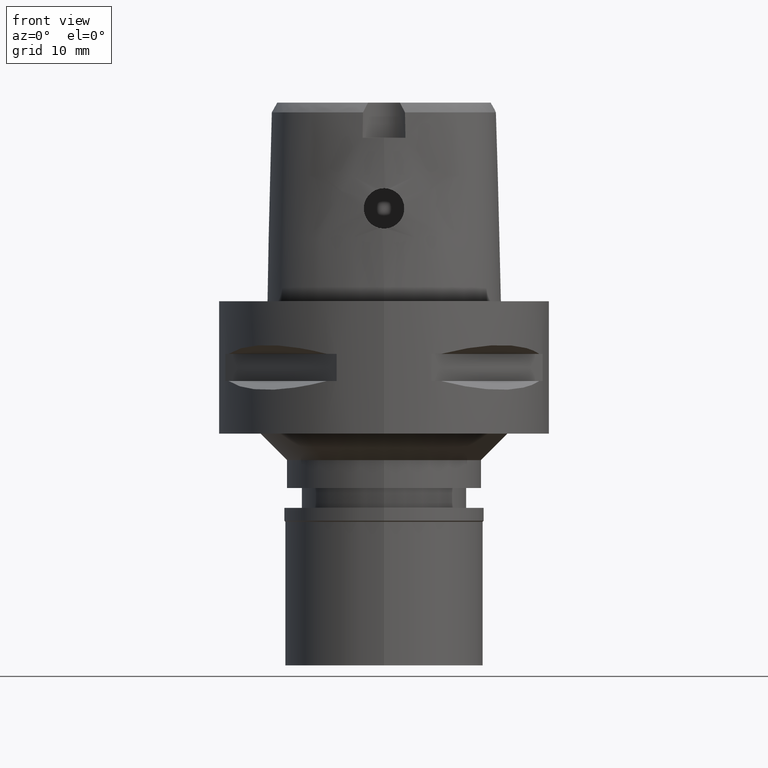
[diagram: clean part render]
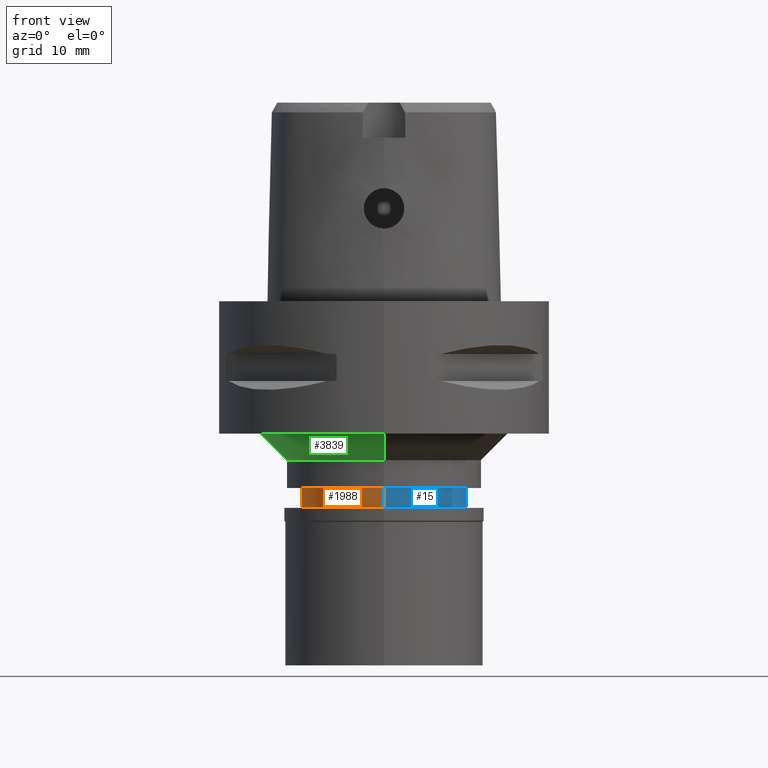
[diagram: same view with three faces highlighted in distinct colors, each labeled with its STEP entity id]
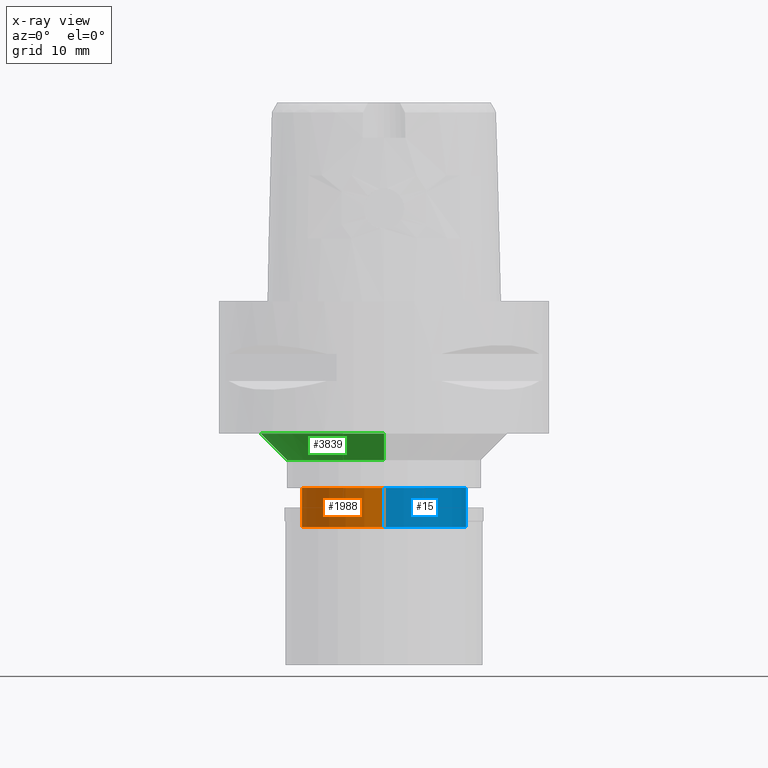
[diagram: x-ray of the same camera — body ghosted, the three highlighted faces saturated]
A machine part, front view with three faces highlighted in distinct colors.
The next image is the same camera in x-ray (body ghosted, the three faces saturated) — at least one of them is partly hidden behind the body in this view.
Their STEP definitions:

[orange] entity #1988 — the highlighted cylindrical surface (partial cylindrical patch) has radius 12.5 mm, axis along (0, 0, -1).
#91 = CARTESIAN_POINT ( 'NONE',  ( 0.0000000000000000000, -12.50000000000000000, -28.19999999999999929 ) ) ;
#128 = CARTESIAN_POINT ( 'NONE',  ( 0.0000000000000000000, 12.50000000000000000, -28.19999999999999929 ) ) ;
#204 = CARTESIAN_POINT ( 'NONE',  ( 0.0000000000000000000, -12.50000000000000000, -34.10000000000000142 ) ) ;
#232 = CARTESIAN_POINT ( 'NONE',  ( 0.0000000000000000000, 1.252201352127999809E-14, 2.250000000000000000 ) ) ;
#284 = CIRCLE ( 'NONE', #3139, 12.50000000000000000 ) ;
#417 = VERTEX_POINT ( 'NONE', #4770 ) ;
#434 = CIRCLE ( 'NONE', #2666, 12.50000000000000000 ) ;
#590 = CYLINDRICAL_SURFACE ( 'NONE', #2211, 12.50000000000000000 ) ;
#675 = CARTESIAN_POINT ( 'NONE',  ( 0.0000000000000000000, 12.50000000000000000, -28.19999999999999929 ) ) ;
#935 = ORIENTED_EDGE ( 'NONE', *, *, #3870, .F. ) ;
#1190 = CARTESIAN_POINT ( 'NONE',  ( 0.0000000000000000000, 1.252201352127999809E-14, -28.19999999999999929 ) ) ;
#1313 = FACE_OUTER_BOUND ( 'NONE', #4338, .T. ) ;
#1724 = EDGE_CURVE ( 'NONE', #417, #3240, #284, .T. ) ;
#1923 = DIRECTION ( 'NONE',  ( 0.0000000000000000000, 1.000000000000000000, 0.0000000000000000000 ) ) ;
#1949 = EDGE_CURVE ( 'NONE', #3318, #2171, #434, .T. ) ;
#1988 = ADVANCED_FACE ( 'NONE', ( #1313 ), #590, .T. ) ;
#2007 = DIRECTION ( 'NONE',  ( 0.0000000000000000000, -1.000000000000000000, 0.0000000000000000000 ) ) ;
#2171 = VERTEX_POINT ( 'NONE', #204 ) ;
#2211 = AXIS2_PLACEMENT_3D ( 'NONE', #232, #3237, #2007 ) ;
#2544 = ORIENTED_EDGE ( 'NONE', *, *, #1724, .T. ) ;
#2572 = ORIENTED_EDGE ( 'NONE', *, *, #3359, .T. ) ;
#2654 = DIRECTION ( 'NONE',  ( 0.0000000000000000000, -1.000000000000000000, 0.0000000000000000000 ) ) ;
#2666 = AXIS2_PLACEMENT_3D ( 'NONE', #3757, #3383, #1923 ) ;
#2714 = DIRECTION ( 'NONE',  ( 0.0000000000000000000, 0.0000000000000000000, -1.000000000000000000 ) ) ;
#3025 = LINE ( 'NONE', #91, #4755 ) ;
#3139 = AXIS2_PLACEMENT_3D ( 'NONE', #1190, #4436, #2654 ) ;
#3237 = DIRECTION ( 'NONE',  ( 0.0000000000000000000, 0.0000000000000000000, -1.000000000000000000 ) ) ;
#3240 = VERTEX_POINT ( 'NONE', #675 ) ;
#3318 = VERTEX_POINT ( 'NONE', #3727 ) ;
#3359 = EDGE_CURVE ( 'NONE', #3240, #3318, #4476, .T. ) ;
#3383 = DIRECTION ( 'NONE',  ( 0.0000000000000000000, 0.0000000000000000000, 1.000000000000000000 ) ) ;
#3727 = CARTESIAN_POINT ( 'NONE',  ( 0.0000000000000000000, 12.50000000000000000, -34.10000000000000142 ) ) ;
#3757 = CARTESIAN_POINT ( 'NONE',  ( 0.0000000000000000000, 1.252201352127999809E-14, -34.10000000000000142 ) ) ;
#3810 = DIRECTION ( 'NONE',  ( 0.0000000000000000000, 0.0000000000000000000, -1.000000000000000000 ) ) ;
#3870 = EDGE_CURVE ( 'NONE', #417, #2171, #3025, .T. ) ;
#4167 = VECTOR ( 'NONE', #3810, 1000.000000000000000 ) ;
#4225 = ORIENTED_EDGE ( 'NONE', *, *, #1949, .T. ) ;
#4338 = EDGE_LOOP ( 'NONE', ( #4225, #935, #2544, #2572 ) ) ;
#4436 = DIRECTION ( 'NONE',  ( 0.0000000000000000000, 0.0000000000000000000, -1.000000000000000000 ) ) ;
#4476 = LINE ( 'NONE', #128, #4167 ) ;
#4755 = VECTOR ( 'NONE', #2714, 1000.000000000000000 ) ;
#4770 = CARTESIAN_POINT ( 'NONE',  ( 0.0000000000000000000, -12.50000000000000000, -28.19999999999999929 ) ) ;

[blue] entity #15 — the highlighted cylindrical surface (partial cylindrical patch) has radius 12.5 mm, axis along (0, 0, -1).
#15 = ADVANCED_FACE ( 'NONE', ( #807 ), #3867, .T. ) ;
#91 = CARTESIAN_POINT ( 'NONE',  ( 0.0000000000000000000, -12.50000000000000000, -28.19999999999999929 ) ) ;
#128 = CARTESIAN_POINT ( 'NONE',  ( 0.0000000000000000000, 12.50000000000000000, -28.19999999999999929 ) ) ;
#204 = CARTESIAN_POINT ( 'NONE',  ( 0.0000000000000000000, -12.50000000000000000, -34.10000000000000142 ) ) ;
#403 = ORIENTED_EDGE ( 'NONE', *, *, #3359, .F. ) ;
#417 = VERTEX_POINT ( 'NONE', #4770 ) ;
#539 = DIRECTION ( 'NONE',  ( 0.0000000000000000000, 0.0000000000000000000, 1.000000000000000000 ) ) ;
#594 = DIRECTION ( 'NONE',  ( 0.0000000000000000000, 1.000000000000000000, 0.0000000000000000000 ) ) ;
#631 = EDGE_LOOP ( 'NONE', ( #1119, #3595, #1598, #403 ) ) ;
#675 = CARTESIAN_POINT ( 'NONE',  ( 0.0000000000000000000, 12.50000000000000000, -28.19999999999999929 ) ) ;
#806 = EDGE_CURVE ( 'NONE', #2171, #3318, #883, .T. ) ;
#807 = FACE_OUTER_BOUND ( 'NONE', #631, .T. ) ;
#835 = CARTESIAN_POINT ( 'NONE',  ( 0.0000000000000000000, 1.252201352127999809E-14, 2.250000000000000000 ) ) ;
#883 = CIRCLE ( 'NONE', #3610, 12.50000000000000000 ) ;
#1119 = ORIENTED_EDGE ( 'NONE', *, *, #3003, .T. ) ;
#1291 = CARTESIAN_POINT ( 'NONE',  ( 0.0000000000000000000, 1.252201352127999809E-14, -28.19999999999999929 ) ) ;
#1598 = ORIENTED_EDGE ( 'NONE', *, *, #806, .T. ) ;
#2006 = DIRECTION ( 'NONE',  ( 0.0000000000000000000, -1.000000000000000000, 0.0000000000000000000 ) ) ;
#2032 = CARTESIAN_POINT ( 'NONE',  ( 0.0000000000000000000, 1.252201352127999809E-14, -34.10000000000000142 ) ) ;
#2171 = VERTEX_POINT ( 'NONE', #204 ) ;
#2324 = DIRECTION ( 'NONE',  ( 0.0000000000000000000, 0.0000000000000000000, -1.000000000000000000 ) ) ;
#2714 = DIRECTION ( 'NONE',  ( 0.0000000000000000000, 0.0000000000000000000, -1.000000000000000000 ) ) ;
#3003 = EDGE_CURVE ( 'NONE', #3240, #417, #3530, .T. ) ;
#3025 = LINE ( 'NONE', #91, #4755 ) ;
#3127 = AXIS2_PLACEMENT_3D ( 'NONE', #835, #2324, #3474 ) ;
#3240 = VERTEX_POINT ( 'NONE', #675 ) ;
#3318 = VERTEX_POINT ( 'NONE', #3727 ) ;
#3359 = EDGE_CURVE ( 'NONE', #3240, #3318, #4476, .T. ) ;
#3474 = DIRECTION ( 'NONE',  ( 0.0000000000000000000, -1.000000000000000000, 0.0000000000000000000 ) ) ;
#3530 = CIRCLE ( 'NONE', #4166, 12.50000000000000000 ) ;
#3595 = ORIENTED_EDGE ( 'NONE', *, *, #3870, .T. ) ;
#3610 = AXIS2_PLACEMENT_3D ( 'NONE', #2032, #539, #2006 ) ;
#3727 = CARTESIAN_POINT ( 'NONE',  ( 0.0000000000000000000, 12.50000000000000000, -34.10000000000000142 ) ) ;
#3810 = DIRECTION ( 'NONE',  ( 0.0000000000000000000, 0.0000000000000000000, -1.000000000000000000 ) ) ;
#3867 = CYLINDRICAL_SURFACE ( 'NONE', #3127, 12.50000000000000000 ) ;
#3870 = EDGE_CURVE ( 'NONE', #417, #2171, #3025, .T. ) ;
#3924 = DIRECTION ( 'NONE',  ( 0.0000000000000000000, 0.0000000000000000000, -1.000000000000000000 ) ) ;
#4166 = AXIS2_PLACEMENT_3D ( 'NONE', #1291, #3924, #594 ) ;
#4167 = VECTOR ( 'NONE', #3810, 1000.000000000000000 ) ;
#4476 = LINE ( 'NONE', #128, #4167 ) ;
#4755 = VECTOR ( 'NONE', #2714, 1000.000000000000000 ) ;
#4770 = CARTESIAN_POINT ( 'NONE',  ( 0.0000000000000000000, -12.50000000000000000, -28.19999999999999929 ) ) ;

[green] entity #3839 — the highlighted conical surface has half-angle 45 deg.
#137 = DIRECTION ( 'NONE',  ( 0.0000000000000000000, 1.000000000000000000, 0.0000000000000000000 ) ) ;
#245 = CARTESIAN_POINT ( 'NONE',  ( 0.0000000000000000000, 14.75000000000000000, -24.00000000000000000 ) ) ;
#428 = EDGE_CURVE ( 'NONE', #1656, #3269, #709, .T. ) ;
#496 = FACE_OUTER_BOUND ( 'NONE', #1613, .T. ) ;
#549 = EDGE_CURVE ( 'NONE', #3269, #3645, #967, .T. ) ;
#709 = LINE ( 'NONE', #2178, #3059 ) ;
#774 = DIRECTION ( 'NONE',  ( 0.0000000000000000000, -1.000000000000000000, 0.0000000000000000000 ) ) ;
#818 = CARTESIAN_POINT ( 'NONE',  ( 0.0000000000000000000, 18.75000000000000000, -20.00000000000000000 ) ) ;
#860 = DIRECTION ( 'NONE',  ( 0.0000000000000000000, 0.0000000000000000000, 1.000000000000000000 ) ) ;
#967 = CIRCLE ( 'NONE', #2910, 14.75000000000000000 ) ;
#1153 = CARTESIAN_POINT ( 'NONE',  ( 0.0000000000000000000, -18.75000000000000000, -20.00000000000000000 ) ) ;
#1160 = ORIENTED_EDGE ( 'NONE', *, *, #2488, .T. ) ;
#1419 = VERTEX_POINT ( 'NONE', #1940 ) ;
#1613 = EDGE_LOOP ( 'NONE', ( #3332, #2023, #4118, #1160 ) ) ;
#1656 = VERTEX_POINT ( 'NONE', #1153 ) ;
#1940 = CARTESIAN_POINT ( 'NONE',  ( 0.0000000000000000000, 18.75000000000000000, -20.00000000000000000 ) ) ;
#2023 = ORIENTED_EDGE ( 'NONE', *, *, #428, .F. ) ;
#2178 = CARTESIAN_POINT ( 'NONE',  ( 0.0000000000000000000, -18.75000000000000000, -20.00000000000000000 ) ) ;
#2212 = VECTOR ( 'NONE', #2293, 1000.000000000000114 ) ;
#2257 = CONICAL_SURFACE ( 'NONE', #3988, 16.75000000000000000, 0.7853981633972997312 ) ;
#2293 = DIRECTION ( 'NONE',  ( 0.0000000000000000000, -0.7071067811865474617, -0.7071067811865474617 ) ) ;
#2488 = EDGE_CURVE ( 'NONE', #1419, #3645, #2652, .T. ) ;
#2540 = EDGE_CURVE ( 'NONE', #1656, #1419, #2837, .T. ) ;
#2652 = LINE ( 'NONE', #818, #2212 ) ;
#2693 = CARTESIAN_POINT ( 'NONE',  ( 0.0000000000000000000, 0.0000000000000000000, -22.00000000000000000 ) ) ;
#2837 = CIRCLE ( 'NONE', #3701, 18.75000000000000000 ) ;
#2855 = DIRECTION ( 'NONE',  ( 0.0000000000000000000, -1.000000000000000000, 0.0000000000000000000 ) ) ;
#2903 = DIRECTION ( 'NONE',  ( 0.0000000000000000000, 0.7071067811865474617, -0.7071067811865474617 ) ) ;
#2910 = AXIS2_PLACEMENT_3D ( 'NONE', #4109, #3347, #774 ) ;
#3059 = VECTOR ( 'NONE', #2903, 1000.000000000000114 ) ;
#3269 = VERTEX_POINT ( 'NONE', #4031 ) ;
#3332 = ORIENTED_EDGE ( 'NONE', *, *, #549, .F. ) ;
#3347 = DIRECTION ( 'NONE',  ( 0.0000000000000000000, 0.0000000000000000000, -1.000000000000000000 ) ) ;
#3508 = CARTESIAN_POINT ( 'NONE',  ( 0.0000000000000000000, 0.0000000000000000000, -20.00000000000000000 ) ) ;
#3585 = DIRECTION ( 'NONE',  ( 0.0000000000000000000, 0.0000000000000000000, -1.000000000000000000 ) ) ;
#3645 = VERTEX_POINT ( 'NONE', #245 ) ;
#3701 = AXIS2_PLACEMENT_3D ( 'NONE', #3508, #3585, #2855 ) ;
#3839 = ADVANCED_FACE ( 'NONE', ( #496 ), #2257, .T. ) ;
#3988 = AXIS2_PLACEMENT_3D ( 'NONE', #2693, #860, #137 ) ;
#4031 = CARTESIAN_POINT ( 'NONE',  ( 0.0000000000000000000, -14.75000000000000000, -24.00000000000000000 ) ) ;
#4109 = CARTESIAN_POINT ( 'NONE',  ( 0.0000000000000000000, 0.0000000000000000000, -24.00000000000000000 ) ) ;
#4118 = ORIENTED_EDGE ( 'NONE', *, *, #2540, .T. ) ;